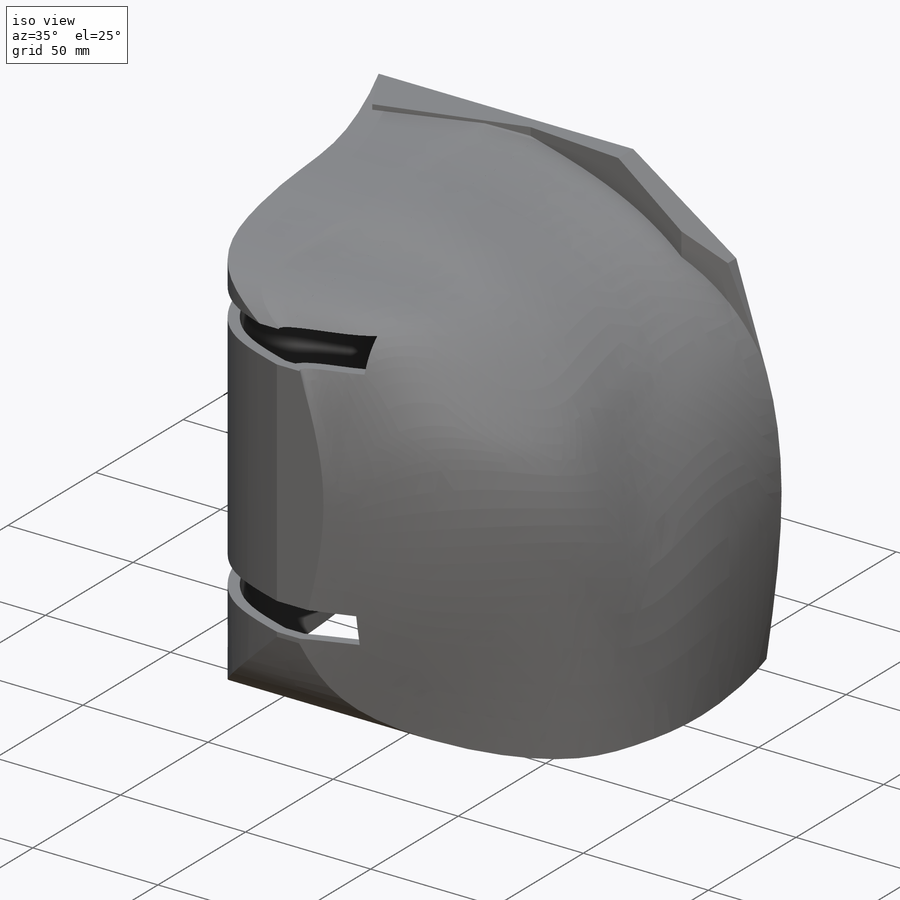
[diagram: iso view]
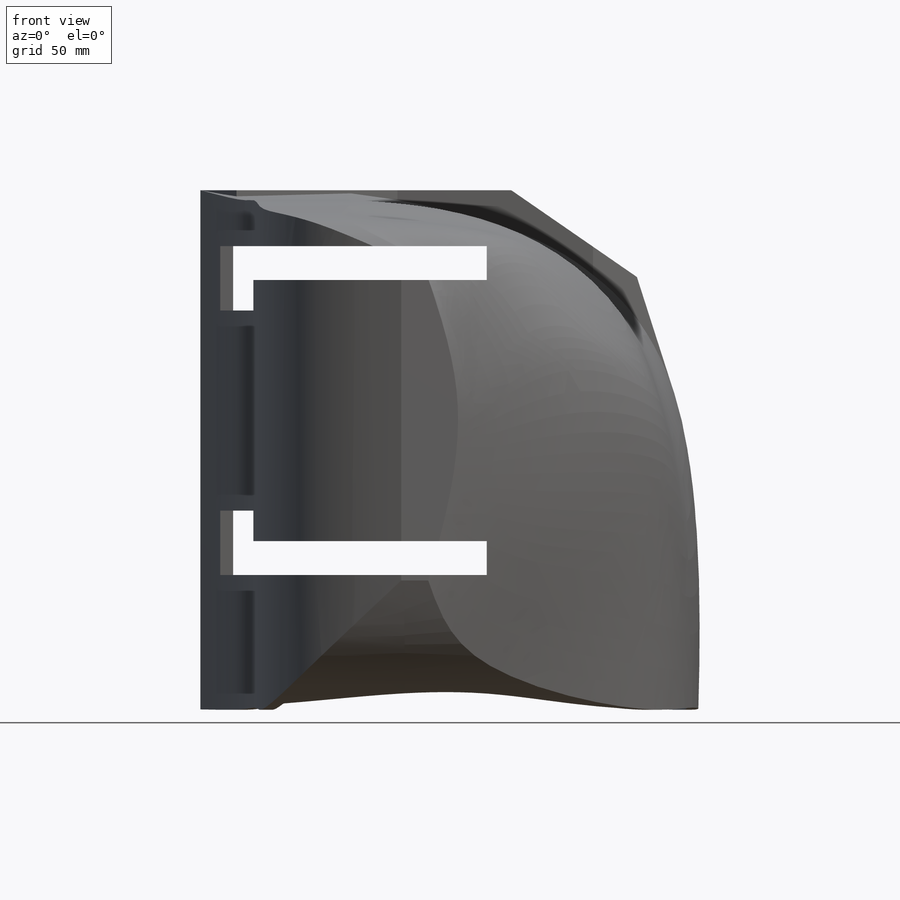
[diagram: front view]
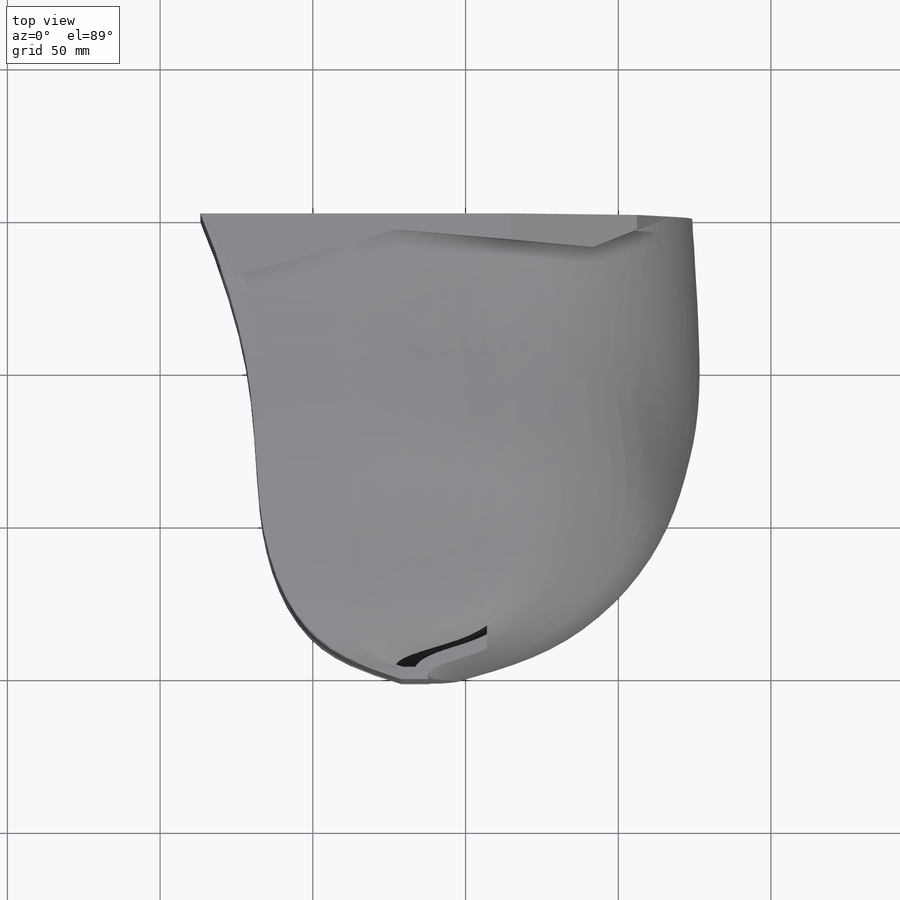
[diagram: top view]
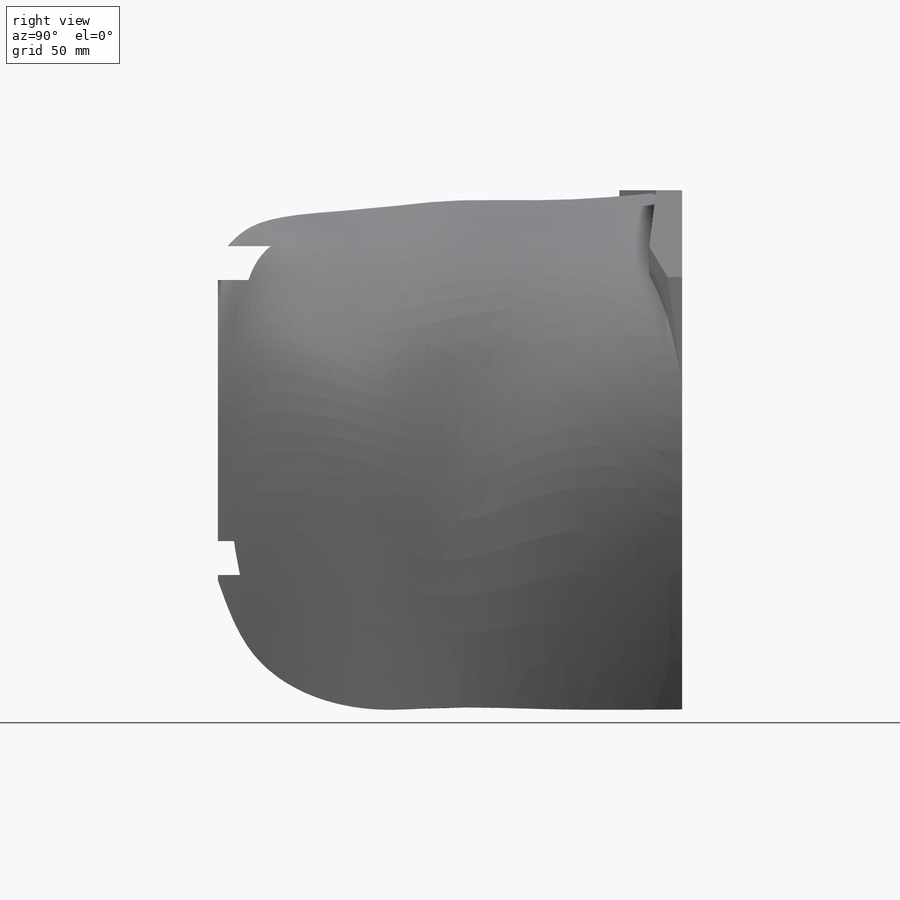
[diagram: right view]
SOLIDWORKS PART (.sldprt)
format: sldprt  version: not decoded by parser v0  size: 702,464 bytes
history: native  units: mm
features: sketch x12, plane x12, cut_extrude x4, material x1, extrude x1, shell x1 (+14 scaffold rows collapsed)
feature tree (45):
  scaffold x14  (default folders/planes/origin — collapsed)
  material  "Material <not specified>"
  sketch  "Sketch1"  dims[D1=155.0mm D2=170.0mm]
  plane  "Plane1"  Offset=20mm
  plane  "Plane2"  Offset=40mm
  plane  "Plane3"  Offset=60mm
  plane  "Plane4"  Offset=80mm
  plane  "Plane5"  Offset=100mm
  plane  "Plane6"  Offset=120mm
  plane  "Plane7"  Offset=140mm
  plane  "Plane10"  Offset=12mm
  sketch  "Sketch9"  dims[D1=~66.814424mm]
  plane  "Plane11"
  sketch  "Sketch11"
  sketch  "Sketch10"
  sketch  "Sketch8"
  sketch  "Sketch6"
  sketch  "Sketch2"
  sketch  "Sketch17"
  extrude  "Extrude8"  Depth=74mm
  sketch  "Sketch18"  dims[D1=50.0mm]
  cut_extrude  "Extrude9"  Depth=14mm
  shell  "Shell2"  Thickness=4mm
  plane  "Plane12"
  plane  "Plane13"
  sketch  "Sketch20"  dims[D1=0.0mm]
  cut_extrude  "Extrude10"  Depth=10mm
  plane  "Plane14"  Offset=30mm
  sketch  "Sketch22"  dims[D1=85.5mm D2=40.0mm]
  cut_extrude  "Extrude13"  Depth=135mm
  sketch  "Sketch23"  dims[D1=10.0mm D2=50.0mm]
  cut_extrude  "Extrude14"  Depth=64.676877mm
decode coverage: 12 of 18 modeling features carry decoded parameters
note: ~ marks probable driven/reference dimensions
note: suppression state not decoded; provenance and decode notes live in map.json
